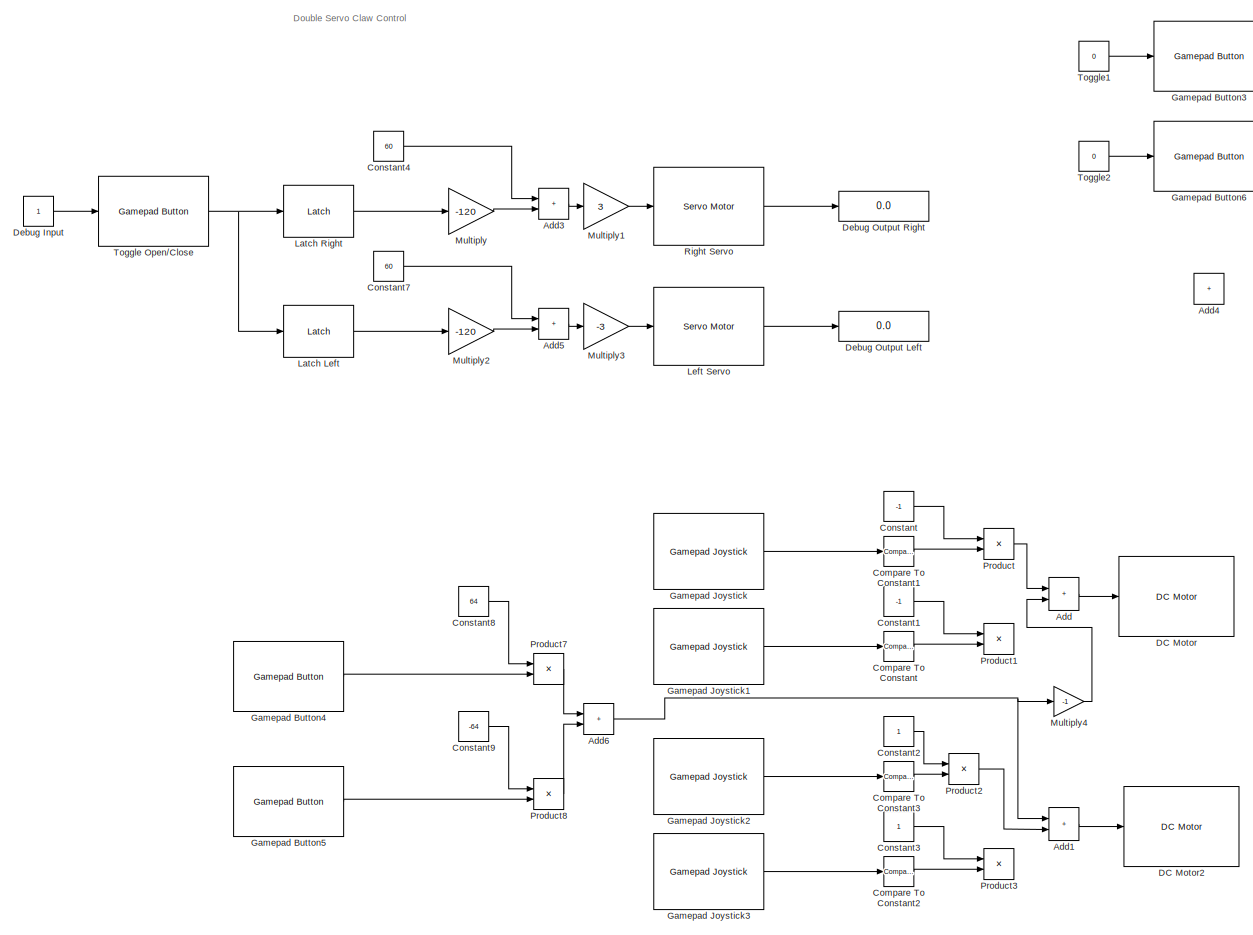
[diagram: root canvas - part 1/4, left side, full height]
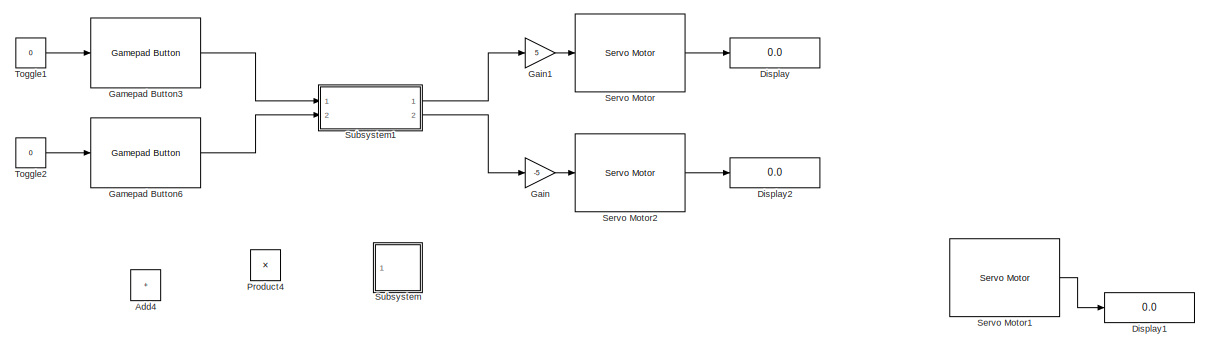
[diagram: root canvas - part 2/4, top center region]
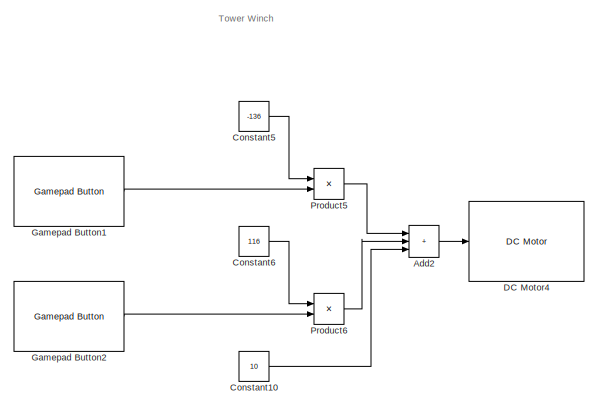
[diagram: root canvas - part 3/4, bottom center region]
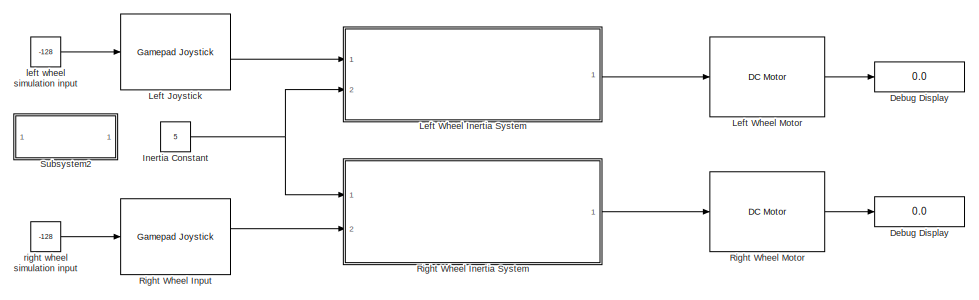
[diagram: root canvas - part 4/4, bottom right region]
MODEL slx_19b2fa69cb2c
KIND model
CONFIG AbsTol = auto
CONFIG EnableMultiTasking = off
CONFIG FixedStep = auto
CONFIG MaxStep = auto
CONFIG MinStep = auto
CONFIG RelTol = 1e-3
CONFIG SampleTimeConstraint = Unconstrained
CONFIG SolverName = VariableStepAuto
CONFIG StartTime = 0.0
CONFIG StopTime = 10.0
BLOCK [Display]  Debug Display
  Commented = on
  Decimation = 1
  Ports = [1]
BLOCK [Sum] Add
  IconShape = rectangular
  Ports = [2, 1]
BLOCK [Sum] Add1
  IconShape = rectangular
  Ports = [2, 1]
BLOCK [Sum] Add2
  IconShape = rectangular
  Inputs = +++
  Ports = [3, 1]
BLOCK [Sum] Add3
  IconShape = rectangular
  Ports = [2, 1]
BLOCK [Sum] Add4
  Commented = on
  IconShape = rectangular
  Ports = [2, 1]
BLOCK [Sum] Add5
  IconShape = rectangular
  Ports = [2, 1]
BLOCK [Sum] Add6
  IconShape = rectangular
  Ports = [2, 1]
BLOCK [Reference] Compare To Constant  REF=simulink/Logic and Bit
Operations/Compare
To Constant
  Commented = on
  Ports = [1, 1]
  SourceBlock = simulink/Logic and Bit\nOperations/Compare\nTo Constant
  SourceProductBaseCode = SL
  SourceType = Compare To Constant
BLOCK [Reference] Compare To Constant1  REF=simulink/Logic and Bit
Operations/Compare
To Constant
  Commented = through
  Ports = [1, 1]
  SourceBlock = simulink/Logic and Bit\nOperations/Compare\nTo Constant
  SourceProductBaseCode = SL
  SourceType = Compare To Constant
BLOCK [Reference] Compare To Constant2  REF=simulink/Logic and Bit
Operations/Compare
To Constant
  Commented = on
  Ports = [1, 1]
  SourceBlock = simulink/Logic and Bit\nOperations/Compare\nTo Constant
  SourceProductBaseCode = SL
  SourceType = Compare To Constant
BLOCK [Reference] Compare To Constant3  REF=simulink/Logic and Bit
Operations/Compare
To Constant
  Commented = through
  Ports = [1, 1]
  SourceBlock = simulink/Logic and Bit\nOperations/Compare\nTo Constant
  SourceProductBaseCode = SL
  SourceType = Compare To Constant
BLOCK [Constant] Constant
  Value = -1
BLOCK [Constant] Constant1
  Commented = on
  Value = -1
BLOCK [Constant] Constant10
  Value = 10
BLOCK [Constant] Constant2
BLOCK [Constant] Constant3
  Commented = on
BLOCK [Constant] Constant4
  Value = 60
BLOCK [Constant] Constant5
  Value = -136
BLOCK [Constant] Constant6
  Value = 116
BLOCK [Constant] Constant7
  Value = 60
BLOCK [Constant] Constant8
  Value = 64
BLOCK [Constant] Constant9
  Value = -64
BLOCK [Reference] DC Motor  REF=vexarmcortexlib/Actuators/DC Motor
  Ports = [1]
  SourceBlock = vexarmcortexlib/Actuators/DC Motor
  SourceProductBaseCode = EC_VEX_MICRO
  SourceType = DC Motor
BLOCK [Reference] DC Motor2  REF=vexarmcortexlib/Actuators/DC Motor
  Ports = [1]
  SourceBlock = vexarmcortexlib/Actuators/DC Motor
  SourceProductBaseCode = EC_VEX_MICRO
  SourceType = DC Motor
BLOCK [Reference] DC Motor4  REF=vexarmcortexlib/Actuators/DC Motor
  Ports = [1]
  SourceBlock = vexarmcortexlib/Actuators/DC Motor
  SourceProductBaseCode = EC_VEX_MICRO
  SourceType = DC Motor
BLOCK [Display] Debug Display
  Commented = on
  Decimation = 1
  Ports = [1]
BLOCK [Constant] Debug Input
  OpenFcn = if strcmp('0',get_param(gcb, 'Value'))                        set_param(gcb, 'Value', '1');\nelse                                                                                       \n            set_param(gcb, 'Value', '0');                                                  \nend  <repeated x3 — deduplicated; at blocks: Debug Input, Toggle1, Toggle2>
BLOCK [Display] Debug Output Left
  Decimation = 1
  Ports = [1]
BLOCK [Display] Debug Output Right
  Decimation = 1
  Ports = [1]
BLOCK [Display] Display
  Commented = on
  Decimation = 1
  Ports = [1]
BLOCK [Display] Display1
  Commented = on
  Decimation = 1
  Ports = [1]
BLOCK [Display] Display2
  Commented = on
  Decimation = 1
  Ports = [1]
BLOCK [Gain] Gain
  Commented = on
  Gain = -5
BLOCK [Gain] Gain1
  Commented = on
  Gain = 5
BLOCK [Reference] Gamepad Button1  REF=vexarmcortexlib/Gamepad/Gamepad Button
  Ports = [0, 1]
  SourceBlock = vexarmcortexlib/Gamepad/Gamepad Button
  SourceProductBaseCode = EC_VEX_MICRO
  SourceType = Gamepad Button
BLOCK [Reference] Gamepad Button2  REF=vexarmcortexlib/Gamepad/Gamepad Button
  Ports = [0, 1]
  SourceBlock = vexarmcortexlib/Gamepad/Gamepad Button
  SourceProductBaseCode = EC_VEX_MICRO
  SourceType = Gamepad Button
BLOCK [Reference] Gamepad Button3  REF=vexarmcortexlib/Gamepad/Gamepad Button
  Commented = on
  Ports = [1, 1]
  SourceBlock = vexarmcortexlib/Gamepad/Gamepad Button
  SourceProductBaseCode = EC_VEX_MICRO
  SourceType = Gamepad Button
BLOCK [Reference] Gamepad Button4  REF=vexarmcortexlib/Gamepad/Gamepad Button
  Ports = [0, 1]
  SourceBlock = vexarmcortexlib/Gamepad/Gamepad Button
  SourceProductBaseCode = EC_VEX_MICRO
  SourceType = Gamepad Button
BLOCK [Reference] Gamepad Button5  REF=vexarmcortexlib/Gamepad/Gamepad Button
  Ports = [0, 1]
  SourceBlock = vexarmcortexlib/Gamepad/Gamepad Button
  SourceProductBaseCode = EC_VEX_MICRO
  SourceType = Gamepad Button
BLOCK [Reference] Gamepad Button6  REF=vexarmcortexlib/Gamepad/Gamepad Button
  Commented = on
  Ports = [1, 1]
  SourceBlock = vexarmcortexlib/Gamepad/Gamepad Button
  SourceProductBaseCode = EC_VEX_MICRO
  SourceType = Gamepad Button
BLOCK [Reference] Gamepad Joystick  REF=vexarmcortexlib/Gamepad/Gamepad Joystick
  Ports = [0, 1]
  SourceBlock = vexarmcortexlib/Gamepad/Gamepad Joystick
  SourceProductBaseCode = EC_VEX_MICRO
  SourceType = Gamepad Joystick
BLOCK [Reference] Gamepad Joystick1  REF=vexarmcortexlib/Gamepad/Gamepad Joystick
  Commented = on
  Ports = [0, 1]
  SourceBlock = vexarmcortexlib/Gamepad/Gamepad Joystick
  SourceProductBaseCode = EC_VEX_MICRO
  SourceType = Gamepad Joystick
BLOCK [Reference] Gamepad Joystick2  REF=vexarmcortexlib/Gamepad/Gamepad Joystick
  Ports = [0, 1]
  SourceBlock = vexarmcortexlib/Gamepad/Gamepad Joystick
  SourceProductBaseCode = EC_VEX_MICRO
  SourceType = Gamepad Joystick
BLOCK [Reference] Gamepad Joystick3  REF=vexarmcortexlib/Gamepad/Gamepad Joystick
  Commented = on
  Ports = [0, 1]
  SourceBlock = vexarmcortexlib/Gamepad/Gamepad Joystick
  SourceProductBaseCode = EC_VEX_MICRO
  SourceType = Gamepad Joystick
BLOCK [Constant] Inertia Constant
  Commented = on
  Value = 5
BLOCK [Reference] Latch Left  REF=vexcommonlib/Latch
  Ports = [1, 1]
  SourceBlock = vexcommonlib/Latch
  SourceProductBaseCode = EC_VEX_MICRO,VEXV5
  SourceType = Latch
BLOCK [Reference] Latch Right  REF=vexcommonlib/Latch
  Ports = [1, 1]
  SourceBlock = vexcommonlib/Latch
  SourceProductBaseCode = EC_VEX_MICRO,VEXV5
  SourceType = Latch
BLOCK [Reference] Left Joystick  REF=vexarmcortexlib/Gamepad/Gamepad Joystick
  Commented = on
  Ports = [1, 1]
  SourceBlock = vexarmcortexlib/Gamepad/Gamepad Joystick
  SourceProductBaseCode = EC_VEX_MICRO
  SourceType = Gamepad Joystick
BLOCK [Reference] Left Servo  REF=vexarmcortexlib/Actuators/Servo Motor
  Ports = [1, 1]
  SourceBlock = vexarmcortexlib/Actuators/Servo Motor
  SourceProductBaseCode = EC_VEX_MICRO
  SourceType = Servo Motor
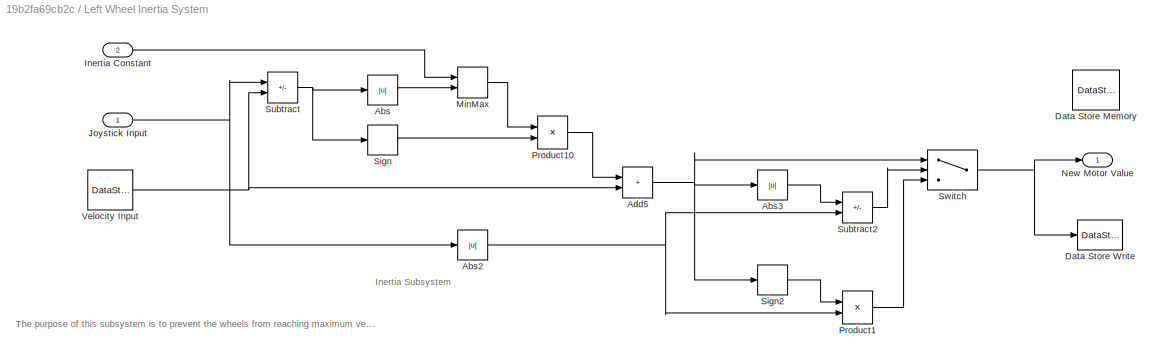
BLOCK [SubSystem] Left Wheel Inertia System
  Commented = on
  Ports = [2, 1]
  RequestExecContextInheritance = off
BLOCK [Abs] Left Wheel Inertia System/Abs
  SaturateOnIntegerOverflow = off
BLOCK [Abs] Left Wheel Inertia System/Abs2
  SaturateOnIntegerOverflow = off
BLOCK [Abs] Left Wheel Inertia System/Abs3
  SaturateOnIntegerOverflow = off
BLOCK [Sum] Left Wheel Inertia System/Add5
  IconShape = rectangular
  Ports = [2, 1]
BLOCK [DataStoreMemory] Left Wheel Inertia System/Data Store Memory
  DataStoreName = velocity1
  ReadBeforeWriteMsg = warning
  ShowAdditionalParam = off
  WriteAfterReadMsg = warning
  WriteAfterWriteMsg = warning
BLOCK [DataStoreWrite] Left Wheel Inertia System/Data Store Write
  DataStoreName = velocity1
  IndexOptions = Index vector (dialog)
  Indices = 1
  OutputSizes = 1
  Ports = [1]
  SampleTime = 0.02
BLOCK [Inport] Left Wheel Inertia System/Inertia Constant
  Port = 2
BLOCK [Inport] Left Wheel Inertia System/Joystick Input
BLOCK [MinMax] Left Wheel Inertia System/MinMax
  Inputs = 2
  Ports = [2, 1]
BLOCK [Outport] Left Wheel Inertia System/New Motor Value
BLOCK [Product] Left Wheel Inertia System/Product1
  Ports = [2, 1]
  RndMeth = Zero
BLOCK [Product] Left Wheel Inertia System/Product10
  Ports = [2, 1]
  RndMeth = Zero
BLOCK [Signum] Left Wheel Inertia System/Sign
BLOCK [Signum] Left Wheel Inertia System/Sign2
BLOCK [Sum] Left Wheel Inertia System/Subtract
  IconShape = rectangular
  Inputs = +-
  Ports = [2, 1]
BLOCK [Sum] Left Wheel Inertia System/Subtract2
  IconShape = rectangular
  Inputs = -+
  Ports = [2, 1]
BLOCK [Switch] Left Wheel Inertia System/Switch
  Criteria = u2 > Threshold
  InputSameDT = off
  SaturateOnIntegerOverflow = off
BLOCK [DataStoreRead] Left Wheel Inertia System/Velocity Input
  DataStoreName = velocity1
  IndexOptions = Index vector (dialog)
  Indices = 1
  OutputSizes = 1
  Ports = [0, 1]
  SampleTime = 0.02
BLOCK [Reference] Left Wheel Motor  REF=vexarmcortexlib/Actuators/DC Motor
  Commented = on
  Ports = [1, 1]
  SourceBlock = vexarmcortexlib/Actuators/DC Motor
  SourceProductBaseCode = EC_VEX_MICRO
  SourceType = DC Motor
BLOCK [Gain] Multiply
  Gain = -120
BLOCK [Gain] Multiply1
  Gain = 3
BLOCK [Gain] Multiply2
  Gain = -120
BLOCK [Gain] Multiply3
  Gain = -3
BLOCK [Gain] Multiply4
  Gain = -1
BLOCK [Product] Product
  NameLocation = right
  Ports = [2, 1]
BLOCK [Product] Product1
  Commented = on
  NameLocation = right
  Ports = [2, 1]
BLOCK [Product] Product2
  NameLocation = right
  Ports = [2, 1]
BLOCK [Product] Product3
  Commented = on
  NameLocation = right
  Ports = [2, 1]
BLOCK [Product] Product4
  Commented = on
  NameLocation = right
  Ports = [2, 1]
BLOCK [Product] Product5
  Ports = [2, 1]
BLOCK [Product] Product6
  Ports = [2, 1]
BLOCK [Product] Product7
  Ports = [2, 1]
BLOCK [Product] Product8
  Ports = [2, 1]
BLOCK [Reference] Right Servo  REF=vexarmcortexlib/Actuators/Servo Motor
  Ports = [1, 1]
  SourceBlock = vexarmcortexlib/Actuators/Servo Motor
  SourceProductBaseCode = EC_VEX_MICRO
  SourceType = Servo Motor
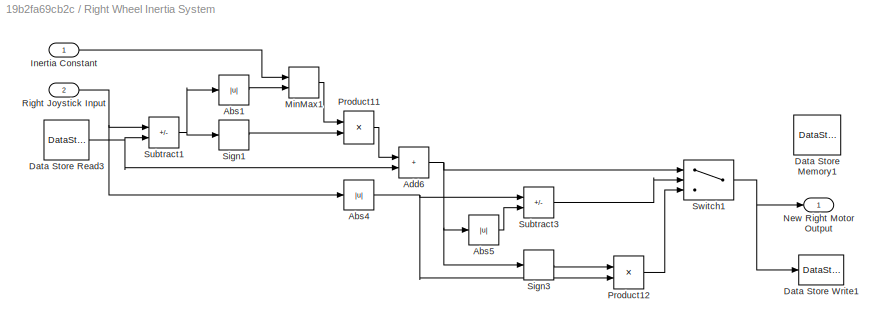
BLOCK [SubSystem] Right Wheel Inertia System
  Commented = on
  Ports = [2, 1]
  RequestExecContextInheritance = off
BLOCK [Abs] Right Wheel Inertia System/Abs1
  SaturateOnIntegerOverflow = off
BLOCK [Abs] Right Wheel Inertia System/Abs4
  SaturateOnIntegerOverflow = off
BLOCK [Abs] Right Wheel Inertia System/Abs5
  SaturateOnIntegerOverflow = off
BLOCK [Sum] Right Wheel Inertia System/Add6
  IconShape = rectangular
  Ports = [2, 1]
BLOCK [DataStoreMemory] Right Wheel Inertia System/Data Store Memory1
  DataStoreName = velocity2
  ReadBeforeWriteMsg = warning
  ShowAdditionalParam = off
  WriteAfterReadMsg = warning
  WriteAfterWriteMsg = warning
BLOCK [DataStoreRead] Right Wheel Inertia System/Data Store Read3
  DataStoreName = velocity2
  IndexOptions = Index vector (dialog)
  Indices = 1
  OutputSizes = 1
  Ports = [0, 1]
  SampleTime = 0.02
BLOCK [DataStoreWrite] Right Wheel Inertia System/Data Store Write1
  DataStoreName = velocity2
  IndexOptions = Index vector (dialog)
  Indices = 1
  OutputSizes = 1
  Ports = [1]
  SampleTime = 0.02
BLOCK [Inport] Right Wheel Inertia System/Inertia Constant
BLOCK [MinMax] Right Wheel Inertia System/MinMax1
  Inputs = 2
  Ports = [2, 1]
BLOCK [Outport] Right Wheel Inertia System/New Right Motor Output
BLOCK [Product] Right Wheel Inertia System/Product11
  Ports = [2, 1]
  RndMeth = Zero
BLOCK [Product] Right Wheel Inertia System/Product12
  Ports = [2, 1]
  RndMeth = Zero
BLOCK [Inport] Right Wheel Inertia System/Right Joystick Input
  Port = 2
BLOCK [Signum] Right Wheel Inertia System/Sign1
BLOCK [Signum] Right Wheel Inertia System/Sign3
BLOCK [Sum] Right Wheel Inertia System/Subtract1
  IconShape = rectangular
  Inputs = +-
  Ports = [2, 1]
BLOCK [Sum] Right Wheel Inertia System/Subtract3
  IconShape = rectangular
  Inputs = +-
  Ports = [2, 1]
BLOCK [Switch] Right Wheel Inertia System/Switch1
  Criteria = u2 > Threshold
  InputSameDT = off
  SaturateOnIntegerOverflow = off
BLOCK [Reference] Right Wheel Input  REF=vexarmcortexlib/Gamepad/Gamepad Joystick
  Commented = on
  Ports = [1, 1]
  SourceBlock = vexarmcortexlib/Gamepad/Gamepad Joystick
  SourceProductBaseCode = EC_VEX_MICRO
  SourceType = Gamepad Joystick
BLOCK [Reference] Right Wheel Motor  REF=vexarmcortexlib/Actuators/DC Motor
  Commented = on
  Ports = [1, 1]
  SourceBlock = vexarmcortexlib/Actuators/DC Motor
  SourceProductBaseCode = EC_VEX_MICRO
  SourceType = DC Motor
BLOCK [Reference] Servo Motor  REF=vexarmcortexlib/Actuators/Servo Motor
  Commented = on
  Ports = [1, 1]
  SourceBlock = vexarmcortexlib/Actuators/Servo Motor
  SourceProductBaseCode = EC_VEX_MICRO
  SourceType = Servo Motor
BLOCK [Reference] Servo Motor1  REF=vexarmcortexlib/Actuators/Servo Motor
  Commented = on
  Ports = [1, 1]
  SourceBlock = vexarmcortexlib/Actuators/Servo Motor
  SourceProductBaseCode = EC_VEX_MICRO
  SourceType = Servo Motor
BLOCK [Reference] Servo Motor2  REF=vexarmcortexlib/Actuators/Servo Motor
  Commented = on
  Ports = [1, 1]
  SourceBlock = vexarmcortexlib/Actuators/Servo Motor
  SourceProductBaseCode = EC_VEX_MICRO
  SourceType = Servo Motor
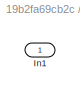
BLOCK [SubSystem] Subsystem
  Commented = on
  Ports = [1]
  RequestExecContextInheritance = off
BLOCK [Inport] Subsystem/In1
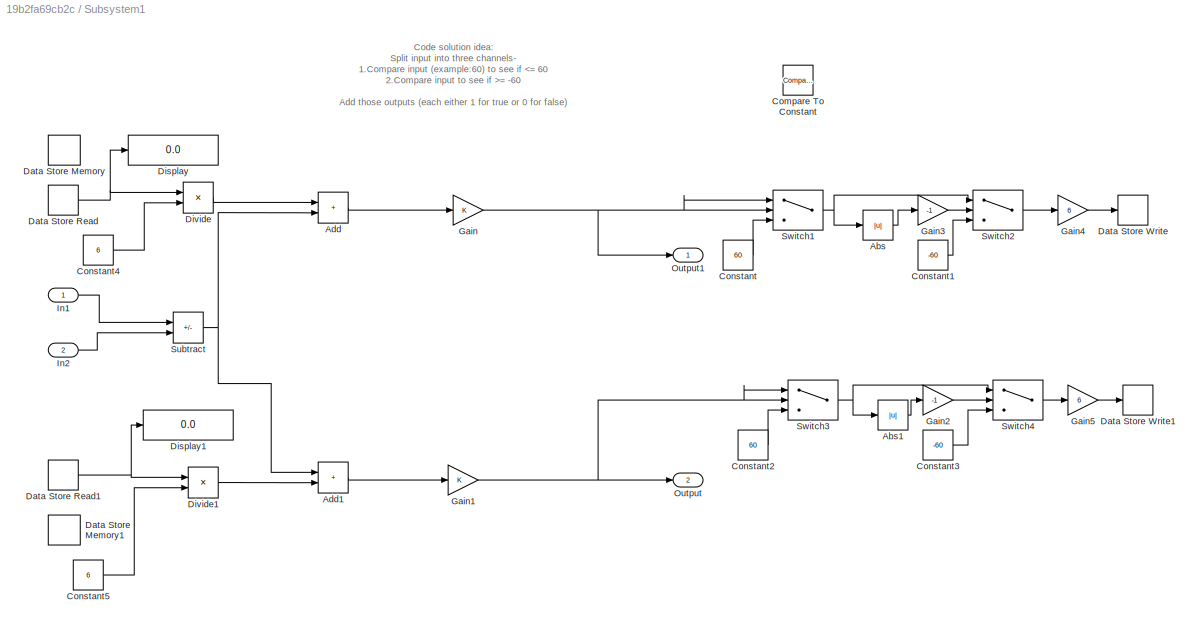
BLOCK [SubSystem] Subsystem1
  Commented = on
  Ports = [2, 2]
  RequestExecContextInheritance = off
BLOCK [Abs] Subsystem1/Abs
  Commented = on
  SaturateOnIntegerOverflow = off
BLOCK [Abs] Subsystem1/Abs1
  SaturateOnIntegerOverflow = off
BLOCK [Sum] Subsystem1/Add
  IconShape = rectangular
  Ports = [2, 1]
BLOCK [Sum] Subsystem1/Add1
  IconShape = rectangular
  Ports = [2, 1]
BLOCK [Reference] Subsystem1/Compare To Constant  REF=simulink/Logic and Bit
Operations/Compare
To Constant
  Ports = [1, 1]
  SourceBlock = simulink/Logic and Bit\nOperations/Compare\nTo Constant
  SourceProductBaseCode = SL
  SourceType = Compare To Constant
BLOCK [Constant] Subsystem1/Constant
  Commented = on
  Value = 60
BLOCK [Constant] Subsystem1/Constant1
  Commented = on
  Value = -60
BLOCK [Constant] Subsystem1/Constant2
  Value = 60
BLOCK [Constant] Subsystem1/Constant3
  Value = -60
BLOCK [Constant] Subsystem1/Constant4
  Value = 6
BLOCK [Constant] Subsystem1/Constant5
  Value = 6
BLOCK [DataStoreMemory] Subsystem1/Data Store Memory
  ReadBeforeWriteMsg = warning
  ShowAdditionalParam = off
  WriteAfterReadMsg = warning
  WriteAfterWriteMsg = warning
BLOCK [DataStoreMemory] Subsystem1/Data Store Memory1
  DataStoreName = B
  ReadBeforeWriteMsg = warning
  ShowAdditionalParam = off
  WriteAfterReadMsg = warning
  WriteAfterWriteMsg = warning
BLOCK [DataStoreRead] Subsystem1/Data Store Read
  IndexOptions = Index vector (dialog)
  Indices = 1
  OutputSizes = 1
  Ports = [0, 1]
BLOCK [DataStoreRead] Subsystem1/Data Store Read1
  DataStoreName = B
  IndexOptions = Index vector (dialog)
  Indices = 1
  OutputSizes = 1
  Ports = [0, 1]
BLOCK [DataStoreWrite] Subsystem1/Data Store Write
  IndexOptions = Index vector (dialog)
  Indices = 1
  OutputSizes = 1
  Ports = [1]
BLOCK [DataStoreWrite] Subsystem1/Data Store Write1
  DataStoreName = B
  IndexOptions = Index vector (dialog)
  Indices = 1
  OutputSizes = 1
  Ports = [1]
BLOCK [Display] Subsystem1/Display
  Decimation = 1
  Ports = [1]
BLOCK [Display] Subsystem1/Display1
  Decimation = 1
  Ports = [1]
BLOCK [Product] Subsystem1/Divide
  Inputs = */
  Ports = [2, 1]
BLOCK [Product] Subsystem1/Divide1
  Inputs = */
  Ports = [2, 1]
BLOCK [Gain] Subsystem1/Gain
BLOCK [Gain] Subsystem1/Gain1
BLOCK [Gain] Subsystem1/Gain2
  Gain = -1
BLOCK [Gain] Subsystem1/Gain3
  Commented = on
  Gain = -1
BLOCK [Gain] Subsystem1/Gain4
  Gain = 6
BLOCK [Gain] Subsystem1/Gain5
  Gain = 6
BLOCK [Inport] Subsystem1/In1
BLOCK [Inport] Subsystem1/In2
  Port = 2
BLOCK [Outport] Subsystem1/Output
  Port = 2
BLOCK [Outport] Subsystem1/Output1
BLOCK [Sum] Subsystem1/Subtract
  IconShape = rectangular
  Inputs = +-
  Ports = [2, 1]
BLOCK [Switch] Subsystem1/Switch1
  Commented = on
  Criteria = u2 > Threshold
  InputSameDT = off
  SaturateOnIntegerOverflow = off
  Threshold = -60
BLOCK [Switch] Subsystem1/Switch2
  Commented = on
  Criteria = u2 > Threshold
  InputSameDT = off
  SaturateOnIntegerOverflow = off
  Threshold = -60
BLOCK [Switch] Subsystem1/Switch3
  Criteria = u2 > Threshold
  InputSameDT = off
  SaturateOnIntegerOverflow = off
  Threshold = -60
BLOCK [Switch] Subsystem1/Switch4
  Criteria = u2 > Threshold
  InputSameDT = off
  SaturateOnIntegerOverflow = off
  Threshold = -60
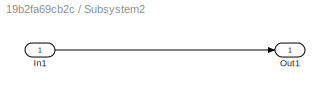
BLOCK [SubSystem] Subsystem2
  Commented = on
  Ports = [1, 1]
  RequestExecContextInheritance = off
BLOCK [Inport] Subsystem2/In1
BLOCK [Outport] Subsystem2/Out1
BLOCK [Reference] Toggle Open//Close  REF=vexarmcortexlib/Gamepad/Gamepad Button
  Ports = [1, 1]
  SourceBlock = vexarmcortexlib/Gamepad/Gamepad Button
  SourceProductBaseCode = EC_VEX_MICRO
  SourceType = Gamepad Button
BLOCK [Constant] Toggle1
  Commented = on
  Value = 0
BLOCK [Constant] Toggle2
  Commented = on
  Value = 0
BLOCK [Constant] left wheel simulation input
  Commented = on
  SampleTime = 0.02
  Value = -128
BLOCK [Constant] right wheel simulation input
  Commented = on
  SampleTime = 0.02
  Value = -128
ANNOTATION (root): Double Servo Claw Control
ANNOTATION (root): Tower Winch
ANNOTATION Left Wheel Inertia System: The purpose of this subsystem is to prevent the wheels from reaching maximum velocity too quickly, instead forcing them to gradually reach maximum velocity. The subsystem is also designed to allow velocity to immediately drop for the robot to stop quickly
ANNOTATION Left Wheel Inertia System: Inertia Subsystem
ANNOTATION Subsystem1: Code solution idea: Split input into three channels- 1.Compare input (example:60) to see if = -60 Add those outputs (each either 1 for true or 0 for false) Do a variable comparison using switch blocks: If output >2 Pass through the input route 3
LINE Add1:1 -> DC Motor2:1
LINE Add2:1 -> DC Motor4:1
LINE Add3:1 -> Multiply1:1
LINE Add5:1 -> Multiply3:1
NET Add6:1 -> Add1:1, Multiply4:1
LINE Add:1 -> DC Motor:1
LINE Compare To Constant1:1 -> Product:2
LINE Compare To Constant2:1 -> Product3:2
LINE Compare To Constant3:1 -> Product2:2
LINE Compare To Constant:1 -> Product1:2
LINE Constant10:1 -> Add2:3
LINE Constant1:1 -> Product1:1
LINE Constant2:1 -> Product2:1
LINE Constant3:1 -> Product3:1
LINE Constant4:1 -> Add3:1
LINE Constant5:1 -> Product5:1
LINE Constant6:1 -> Product6:1
LINE Constant7:1 -> Add5:1
LINE Constant8:1 -> Product7:1
LINE Constant9:1 -> Product8:1
LINE Constant:1 -> Product:1
LINE Debug Input:1 -> Toggle Open//Close:1
LINE Gain1:1 -> Servo Motor:1
LINE Gain:1 -> Servo Motor2:1
LINE Gamepad Button1:1 -> Product5:2
LINE Gamepad Button2:1 -> Product6:2
LINE Gamepad Button3:1 -> Subsystem1:1
LINE Gamepad Button4:1 -> Product7:2
LINE Gamepad Button5:1 -> Product8:2
LINE Gamepad Button6:1 -> Subsystem1:2
LINE Gamepad Joystick1:1 -> Compare To Constant:1
LINE Gamepad Joystick2:1 -> Compare To Constant3:1
LINE Gamepad Joystick3:1 -> Compare To Constant2:1
LINE Gamepad Joystick:1 -> Compare To Constant1:1
NET Inertia Constant:1 -> Left Wheel Inertia System:2, Right Wheel Inertia System:1
LINE Latch Left:1 -> Multiply2:1
LINE Latch Right:1 -> Multiply:1
LINE Left Joystick:1 -> Left Wheel Inertia System:1
LINE Left Servo:1 -> Debug Output Left:1
NET Left Wheel Inertia System/Abs2:1 -> Left Wheel Inertia System/Product1:2, Left Wheel Inertia System/Subtract2:2
LINE Left Wheel Inertia System/Abs3:1 -> Left Wheel Inertia System/Subtract2:1
LINE Left Wheel Inertia System/Abs:1 -> Left Wheel Inertia System/MinMax:2
NET Left Wheel Inertia System/Add5:1 -> Left Wheel Inertia System/Abs3:1, Left Wheel Inertia System/Sign2:1, Left Wheel Inertia System/Switch:1
LINE Left Wheel Inertia System/Inertia Constant:1 -> Left Wheel Inertia System/MinMax:1
NET Left Wheel Inertia System/Joystick Input:1 -> Left Wheel Inertia System/Abs2:1, Left Wheel Inertia System/Subtract:1
LINE Left Wheel Inertia System/MinMax:1 -> Left Wheel Inertia System/Product10:1
LINE Left Wheel Inertia System/Product10:1 -> Left Wheel Inertia System/Add5:1
LINE Left Wheel Inertia System/Product1:1 -> Left Wheel Inertia System/Switch:3
LINE Left Wheel Inertia System/Sign2:1 -> Left Wheel Inertia System/Product1:1
LINE Left Wheel Inertia System/Sign:1 -> Left Wheel Inertia System/Product10:2
LINE Left Wheel Inertia System/Subtract2:1 -> Left Wheel Inertia System/Switch:2
NET Left Wheel Inertia System/Subtract:1 -> Left Wheel Inertia System/Abs:1, Left Wheel Inertia System/Sign:1
NET Left Wheel Inertia System/Switch:1 -> Left Wheel Inertia System/Data Store Write:1, Left Wheel Inertia System/New Motor Value:1
NET Left Wheel Inertia System/Velocity Input:1 -> Left Wheel Inertia System/Add5:2, Left Wheel Inertia System/Subtract:2
LINE Left Wheel Inertia System:1 -> Left Wheel Motor:1
LINE Left Wheel Motor:1 ->  Debug Display:1
LINE Multiply1:1 -> Right Servo:1
LINE Multiply2:1 -> Add5:2
LINE Multiply3:1 -> Left Servo:1
LINE Multiply4:1 -> Add:2
LINE Multiply:1 -> Add3:2
LINE Product2:1 -> Add1:2
LINE Product5:1 -> Add2:1
LINE Product6:1 -> Add2:2
LINE Product7:1 -> Add6:1
LINE Product8:1 -> Add6:2
LINE Product:1 -> Add:1
LINE Right Servo:1 -> Debug Output Right:1
LINE Right Wheel Inertia System/Abs1:1 -> Right Wheel Inertia System/MinMax1:2
NET Right Wheel Inertia System/Abs4:1 -> Right Wheel Inertia System/Product12:2, Right Wheel Inertia System/Subtract3:1
LINE Right Wheel Inertia System/Abs5:1 -> Right Wheel Inertia System/Subtract3:2
NET Right Wheel Inertia System/Add6:1 -> Right Wheel Inertia System/Abs5:1, Right Wheel Inertia System/Sign3:1, Right Wheel Inertia System/Switch1:1
NET Right Wheel Inertia System/Data Store Read3:1 -> Right Wheel Inertia System/Add6:2, Right Wheel Inertia System/Subtract1:2
LINE Right Wheel Inertia System/Inertia Constant:1 -> Right Wheel Inertia System/MinMax1:1
LINE Right Wheel Inertia System/MinMax1:1 -> Right Wheel Inertia System/Product11:1
LINE Right Wheel Inertia System/Product11:1 -> Right Wheel Inertia System/Add6:1
LINE Right Wheel Inertia System/Product12:1 -> Right Wheel Inertia System/Switch1:3
NET Right Wheel Inertia System/Right Joystick Input:1 -> Right Wheel Inertia System/Abs4:1, Right Wheel Inertia System/Subtract1:1
LINE Right Wheel Inertia System/Sign1:1 -> Right Wheel Inertia System/Product11:2
LINE Right Wheel Inertia System/Sign3:1 -> Right Wheel Inertia System/Product12:1
NET Right Wheel Inertia System/Subtract1:1 -> Right Wheel Inertia System/Abs1:1, Right Wheel Inertia System/Sign1:1
LINE Right Wheel Inertia System/Subtract3:1 -> Right Wheel Inertia System/Switch1:2
NET Right Wheel Inertia System/Switch1:1 -> Right Wheel Inertia System/Data Store Write1:1, Right Wheel Inertia System/New Right Motor Output:1
LINE Right Wheel Inertia System:1 -> Right Wheel Motor:1
LINE Right Wheel Input:1 -> Right Wheel Inertia System:2
LINE Right Wheel Motor:1 -> Debug Display:1
LINE Servo Motor1:1 -> Display1:1
LINE Servo Motor2:1 -> Display2:1
LINE Servo Motor:1 -> Display:1
LINE Subsystem1/Abs1:1 -> Subsystem1/Gain2:1
LINE Subsystem1/Abs:1 -> Subsystem1/Gain3:1
LINE Subsystem1/Add1:1 -> Subsystem1/Gain1:1
LINE Subsystem1/Add:1 -> Subsystem1/Gain:1
LINE Subsystem1/Constant1:1 -> Subsystem1/Switch2:3
LINE Subsystem1/Constant2:1 -> Subsystem1/Switch3:3
LINE Subsystem1/Constant3:1 -> Subsystem1/Switch4:3
LINE Subsystem1/Constant4:1 -> Subsystem1/Divide:2
LINE Subsystem1/Constant5:1 -> Subsystem1/Divide1:2
LINE Subsystem1/Constant:1 -> Subsystem1/Switch1:3
NET Subsystem1/Data Store Read1:1 -> Subsystem1/Display1:1, Subsystem1/Divide1:1
NET Subsystem1/Data Store Read:1 -> Subsystem1/Display:1, Subsystem1/Divide:1
LINE Subsystem1/Divide1:1 -> Subsystem1/Add1:2
LINE Subsystem1/Divide:1 -> Subsystem1/Add:1
NET Subsystem1/Gain1:1 -> Subsystem1/Output:1, Subsystem1/Switch3:1, Subsystem1/Switch3:2
LINE Subsystem1/Gain2:1 -> Subsystem1/Switch4:2
LINE Subsystem1/Gain3:1 -> Subsystem1/Switch2:2
LINE Subsystem1/Gain4:1 -> Subsystem1/Data Store Write:1
LINE Subsystem1/Gain5:1 -> Subsystem1/Data Store Write1:1
NET Subsystem1/Gain:1 -> Subsystem1/Output1:1, Subsystem1/Switch1:1, Subsystem1/Switch1:2
LINE Subsystem1/In1:1 -> Subsystem1/Subtract:1
LINE Subsystem1/In2:1 -> Subsystem1/Subtract:2
NET Subsystem1/Subtract:1 -> Subsystem1/Add1:1, Subsystem1/Add:2
NET Subsystem1/Switch1:1 -> Subsystem1/Abs:1, Subsystem1/Switch2:1
LINE Subsystem1/Switch2:1 -> Subsystem1/Gain4:1
NET Subsystem1/Switch3:1 -> Subsystem1/Abs1:1, Subsystem1/Switch4:1
LINE Subsystem1/Switch4:1 -> Subsystem1/Gain5:1
LINE Subsystem1:1 -> Gain1:1
LINE Subsystem1:2 -> Gain:1
LINE Subsystem2/In1:1 -> Subsystem2/Out1:1
NET Toggle Open//Close:1 -> Latch Left:1, Latch Right:1
LINE Toggle1:1 -> Gamepad Button3:1
LINE Toggle2:1 -> Gamepad Button6:1
LINE left wheel simulation input:1 -> Left Joystick:1
LINE right wheel simulation input:1 -> Right Wheel Input:1
note: NET lines group one-source signal fan-out (src -> all destinations, sorted); 1:1 wires keep LINE
